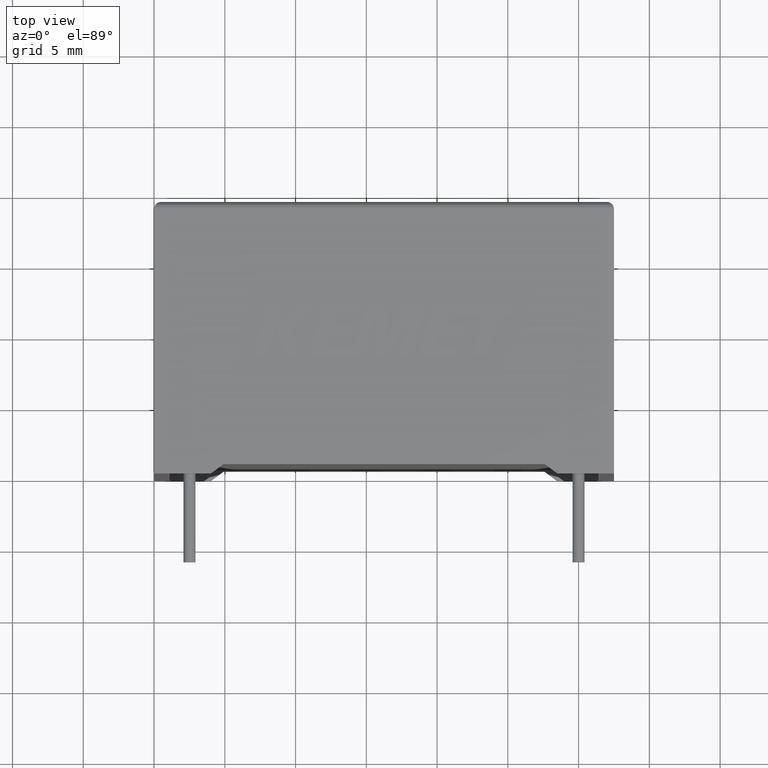
[diagram: clean part render]
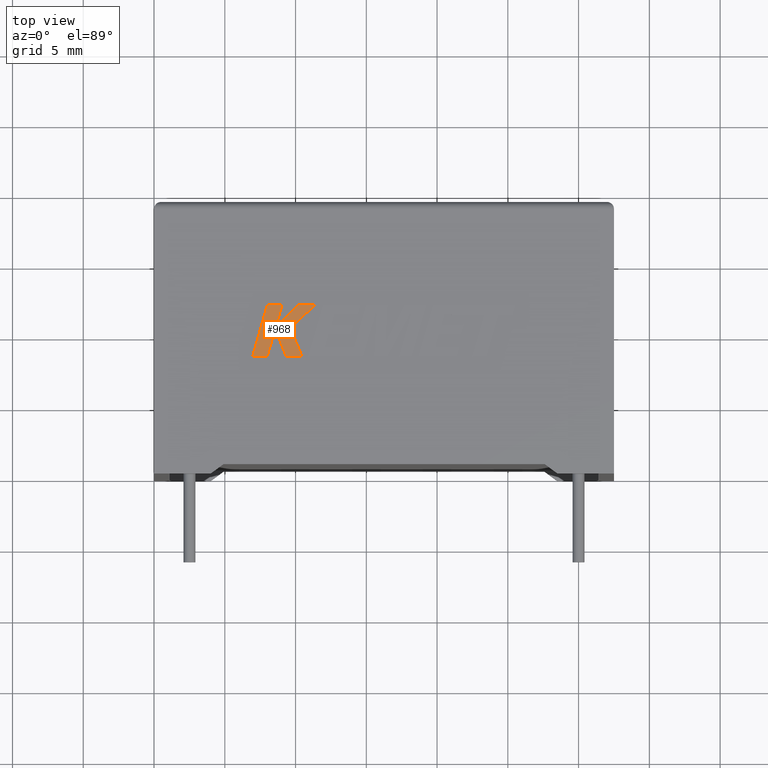
[diagram: same view with one face highlighted and labeled with its STEP entity id]
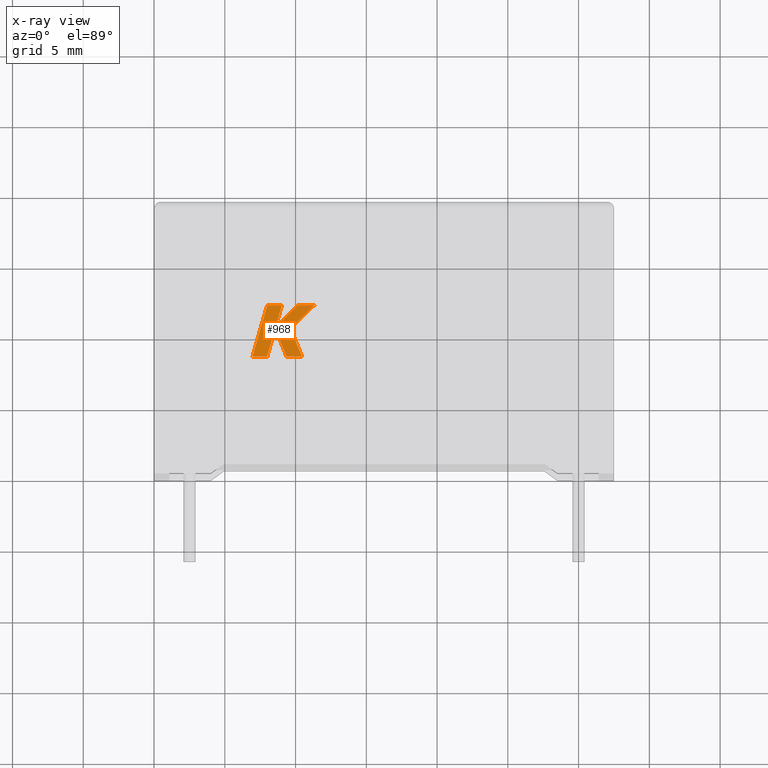
[diagram: x-ray of the same camera — body ghosted, the highlighted face saturated]
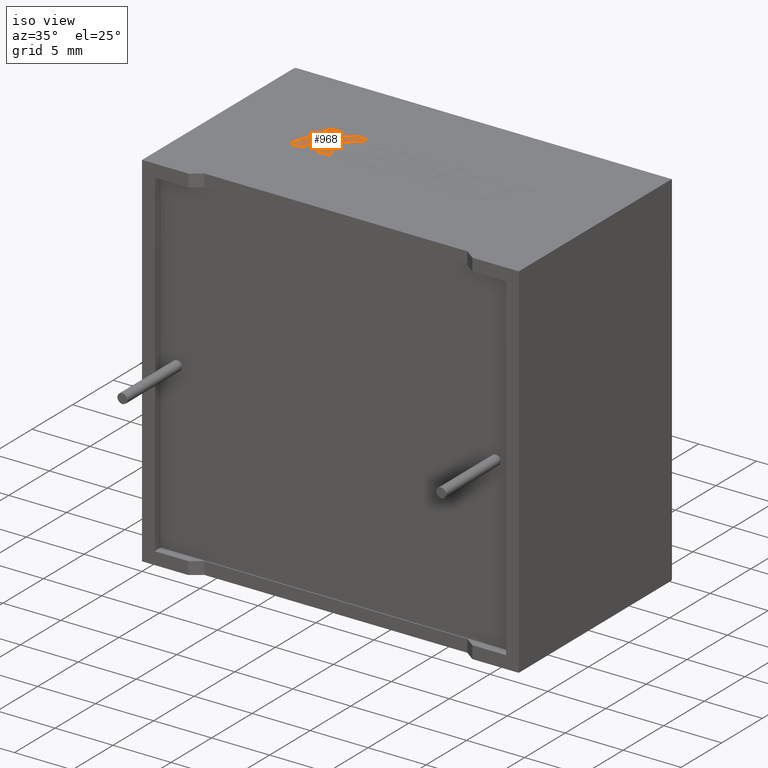
[diagram: same view with one face highlighted and labeled with its STEP entity id]
A machine part, top view. The second image highlights one B-rep face of the part: STEP entity #968.
The next image is the same camera in x-ray: the body ghosted, the highlighted face saturated — about 0% of this face is hidden behind the body in this view.
A second angle (iso view) of the same face is appended — the face is thin or edge-on in the first view.
In plain terms, the highlighted planar face has unit normal (0, 0, -1).
Its self-contained STEP definition (entity closure, byte-faithful):
#22 = VERTEX_POINT ( 'NONE', #2440 ) ;
#54 = LINE ( 'NONE', #2031, #1727 ) ;
#76 = DIRECTION ( 'NONE',  ( -1.000000000000000000, -0.0000000000000000000, -0.0000000000000000000 ) ) ;
#90 = DIRECTION ( 'NONE',  ( 0.2755520632520601600, 0.9612861490927312500, 0.0000000000000000000 ) ) ;
#114 = DIRECTION ( 'NONE',  ( 0.3725077383643967100, -0.9280290862137037200, 0.0000000000000000000 ) ) ;
#117 = CARTESIAN_POINT ( 'NONE',  ( 9.040912784703422700, 11.90203392768284000, 31.30500000000000000 ) ) ;
#122 = LINE ( 'NONE', #2111, #1160 ) ;
#161 = DIRECTION ( 'NONE',  ( 0.7145695586382624400, 0.6995643972269591800, 0.0000000000000000000 ) ) ;
#188 = LINE ( 'NONE', #1535, #2292 ) ;
#211 = DIRECTION ( 'NONE',  ( 0.2755265765475026200, 0.9612934544747576700, 0.0000000000000000000 ) ) ;
#234 = CARTESIAN_POINT ( 'NONE',  ( 9.040912784703422700, 11.90203392768284000, 31.30500000000000000 ) ) ;
#241 = DIRECTION ( 'NONE',  ( -0.7059037656364501900, -0.7083077534943971200, -0.0000000000000000000 ) ) ;
#285 = VECTOR ( 'NONE', #76, 1000.000000000000000 ) ;
#294 = DIRECTION ( 'NONE',  ( 1.000000000000000000, 0.0000000000000000000, 0.0000000000000000000 ) ) ;
#382 = VERTEX_POINT ( 'NONE', #1108 ) ;
#383 = CARTESIAN_POINT ( 'NONE',  ( 8.595931629019629500, 10.34968038506094100, 31.30500000000000000 ) ) ;
#414 = CARTESIAN_POINT ( 'NONE',  ( 8.559903227973432400, 10.23832994412010300, 31.30500000000000000 ) ) ;
#432 = LINE ( 'NONE', #2732, #1254 ) ;
#454 = EDGE_CURVE ( 'NONE', #2759, #1037, #432, .T. ) ;
#499 = CARTESIAN_POINT ( 'NONE',  ( 7.993377421025442700, 8.261759999999885200, 31.30500000000000000 ) ) ;
#559 = LINE ( 'NONE', #1793, #2361 ) ;
#568 = ORIENTED_EDGE ( 'NONE', *, *, #3038, .T. ) ;
#632 = VERTEX_POINT ( 'NONE', #1510 ) ;
#651 = VECTOR ( 'NONE', #294, 1000.000000000000000 ) ;
#692 = CARTESIAN_POINT ( 'NONE',  ( 11.34099671365164700, 11.90203392768284000, 31.30500000000000000 ) ) ;
#694 = CARTESIAN_POINT ( 'NONE',  ( 9.641607456634567100, 10.23832994412012600, 31.30500000000000000 ) ) ;
#706 = DIRECTION ( 'NONE',  ( 0.0000000000000000000, 0.0000000000000000000, -1.000000000000000000 ) ) ;
#750 = ORIENTED_EDGE ( 'NONE', *, *, #2541, .T. ) ;
#782 = DIRECTION ( 'NONE',  ( 1.000000000000000000, -1.104435275910379600E-013, 0.0000000000000000000 ) ) ;
#797 = CARTESIAN_POINT ( 'NONE',  ( 10.46090761938949700, 8.261759999999887000, 31.30500000000000000 ) ) ;
#800 = CARTESIAN_POINT ( 'NONE',  ( 8.004401781717701800, 11.90203392768284000, 31.30500000000000000 ) ) ;
#809 = EDGE_CURVE ( 'NONE', #22, #632, #2344, .T. ) ;
#853 = VERTEX_POINT ( 'NONE', #117 ) ;
#861 = ORIENTED_EDGE ( 'NONE', *, *, #2575, .T. ) ;
#887 = ORIENTED_EDGE ( 'NONE', *, *, #1344, .T. ) ;
#907 = EDGE_CURVE ( 'NONE', #1041, #1737, #54, .T. ) ;
#968 = ADVANCED_FACE ( 'NONE', ( #1395 ), #2808, .F. ) ;
#1013 = ORIENTED_EDGE ( 'NONE', *, *, #454, .T. ) ;
#1037 = VERTEX_POINT ( 'NONE', #1383 ) ;
#1041 = VERTEX_POINT ( 'NONE', #694 ) ;
#1098 = VECTOR ( 'NONE', #211, 1000.000000000000100 ) ;
#1108 = CARTESIAN_POINT ( 'NONE',  ( 10.14301650269177400, 11.90203392768284000, 31.30500000000000000 ) ) ;
#1137 = DIRECTION ( 'NONE',  ( -1.000000000000000000, 0.0000000000000000000, 0.0000000000000000000 ) ) ;
#1160 = VECTOR ( 'NONE', #241, 1000.000000000000000 ) ;
#1235 = VERTEX_POINT ( 'NONE', #1431 ) ;
#1254 = VECTOR ( 'NONE', #1328, 1000.000000000000200 ) ;
#1328 = DIRECTION ( 'NONE',  ( -0.2762033010252005200, -0.9610992334315861000, -0.0000000000000000000 ) ) ;
#1334 = DIRECTION ( 'NONE',  ( -0.3829140317376763000, 0.9237839814038765200, 0.0000000000000000000 ) ) ;
#1344 = EDGE_CURVE ( 'NONE', #2823, #1235, #1979, .T. ) ;
#1383 = CARTESIAN_POINT ( 'NONE',  ( 6.958249999999999600, 8.261760000000000700, 31.30500000000000000 ) ) ;
#1395 = FACE_OUTER_BOUND ( 'NONE', #1701, .T. ) ;
#1412 = CARTESIAN_POINT ( 'NONE',  ( -0.3951220392287577700, -3.520623297275326200, 31.30499999999998600 ) ) ;
#1431 = CARTESIAN_POINT ( 'NONE',  ( 10.46090761938949700, 8.261759999999887000, 31.30500000000000000 ) ) ;
#1467 = CARTESIAN_POINT ( 'NONE',  ( 9.353291722516495100, 8.261759999999887000, 31.30500000000000000 ) ) ;
#1510 = CARTESIAN_POINT ( 'NONE',  ( 8.559903227973432400, 10.23832994412010300, 31.30500000000000000 ) ) ;
#1518 = ORIENTED_EDGE ( 'NONE', *, *, #907, .T. ) ;
#1535 = CARTESIAN_POINT ( 'NONE',  ( 9.353291722516495100, 8.261759999999887000, 31.30500000000000000 ) ) ;
#1669 = ORIENTED_EDGE ( 'NONE', *, *, #1761, .T. ) ;
#1701 = EDGE_LOOP ( 'NONE', ( #1013, #2098, #2615, #1782, #887, #861, #1518, #2112, #1669, #750, #568 ) ) ;
#1727 = VECTOR ( 'NONE', #161, 1000.000000000000100 ) ;
#1737 = VERTEX_POINT ( 'NONE', #692 ) ;
#1761 = EDGE_CURVE ( 'NONE', #382, #2621, #122, .T. ) ;
#1782 = ORIENTED_EDGE ( 'NONE', *, *, #2338, .T. ) ;
#1793 = CARTESIAN_POINT ( 'NONE',  ( 9.641607456634567100, 10.23832994412012600, 31.30500000000000000 ) ) ;
#1852 = VECTOR ( 'NONE', #2011, 1000.000000000000000 ) ;
#1962 = AXIS2_PLACEMENT_3D ( 'NONE', #1412, #706, #1137 ) ;
#1967 = CARTESIAN_POINT ( 'NONE',  ( 10.14301650269177400, 11.90203392768284000, 31.30500000000000000 ) ) ;
#1979 = LINE ( 'NONE', #797, #651 ) ;
#2011 = DIRECTION ( 'NONE',  ( -1.000000000000000000, -0.0000000000000000000, -0.0000000000000000000 ) ) ;
#2031 = CARTESIAN_POINT ( 'NONE',  ( 11.34099671365164700, 11.90203392768284000, 31.30500000000000000 ) ) ;
#2075 = LINE ( 'NONE', #234, #3059 ) ;
#2078 = LINE ( 'NONE', #1967, #1852 ) ;
#2098 = ORIENTED_EDGE ( 'NONE', *, *, #2890, .T. ) ;
#2111 = CARTESIAN_POINT ( 'NONE',  ( 8.595931629019629500, 10.34968038506094100, 31.30500000000000000 ) ) ;
#2112 = ORIENTED_EDGE ( 'NONE', *, *, #2289, .T. ) ;
#2164 = LINE ( 'NONE', #499, #2725 ) ;
#2289 = EDGE_CURVE ( 'NONE', #1737, #382, #2078, .T. ) ;
#2292 = VECTOR ( 'NONE', #114, 1000.000000000000100 ) ;
#2338 = EDGE_CURVE ( 'NONE', #632, #2823, #188, .T. ) ;
#2342 = CARTESIAN_POINT ( 'NONE',  ( 8.004401781717701800, 11.90203392768284000, 31.30500000000000000 ) ) ;
#2344 = LINE ( 'NONE', #414, #1098 ) ;
#2361 = VECTOR ( 'NONE', #1334, 1000.000000000000200 ) ;
#2440 = CARTESIAN_POINT ( 'NONE',  ( 7.993377421025442700, 8.261759999999885200, 31.30500000000000000 ) ) ;
#2541 = EDGE_CURVE ( 'NONE', #2621, #853, #2075, .T. ) ;
#2575 = EDGE_CURVE ( 'NONE', #1235, #1041, #559, .T. ) ;
#2615 = ORIENTED_EDGE ( 'NONE', *, *, #809, .T. ) ;
#2621 = VERTEX_POINT ( 'NONE', #383 ) ;
#2725 = VECTOR ( 'NONE', #782, 1000.000000000000000 ) ;
#2732 = CARTESIAN_POINT ( 'NONE',  ( 6.958249999999999600, 8.261760000000000700, 31.30500000000000000 ) ) ;
#2759 = VERTEX_POINT ( 'NONE', #2342 ) ;
#2793 = LINE ( 'NONE', #800, #285 ) ;
#2808 = PLANE ( 'NONE',  #1962 ) ;
#2823 = VERTEX_POINT ( 'NONE', #1467 ) ;
#2890 = EDGE_CURVE ( 'NONE', #1037, #22, #2164, .T. ) ;
#3038 = EDGE_CURVE ( 'NONE', #853, #2759, #2793, .T. ) ;
#3059 = VECTOR ( 'NONE', #90, 1000.000000000000000 ) ;